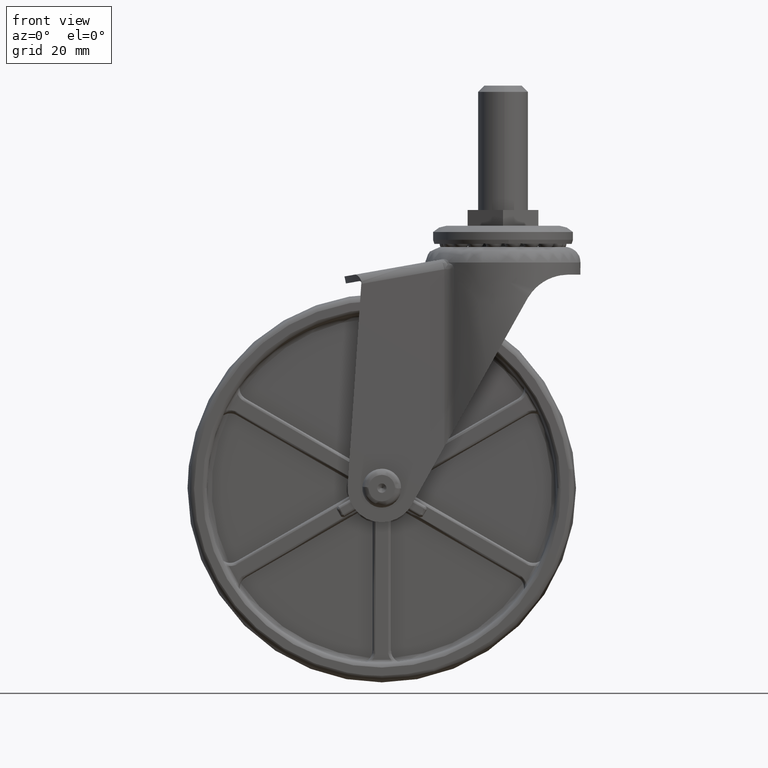
[diagram: clean part render]
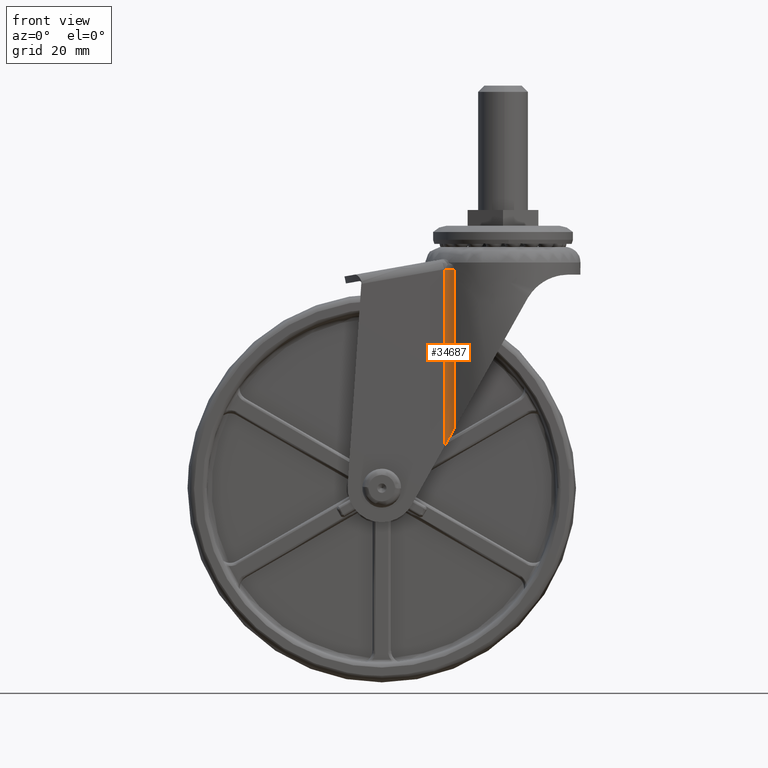
[diagram: same view with one face highlighted and labeled with its STEP entity id]
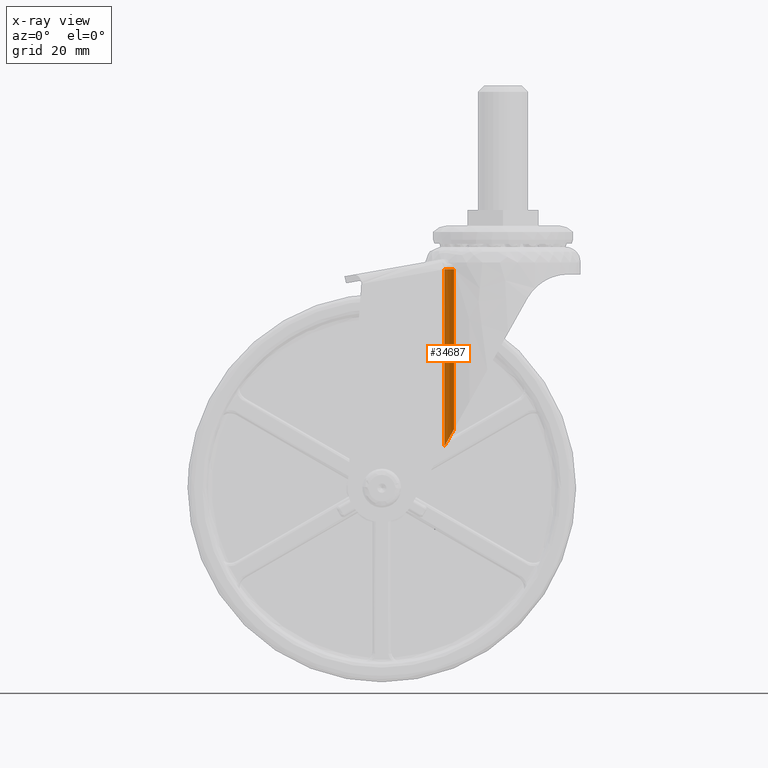
[diagram: x-ray of the same camera — body ghosted, the highlighted face saturated]
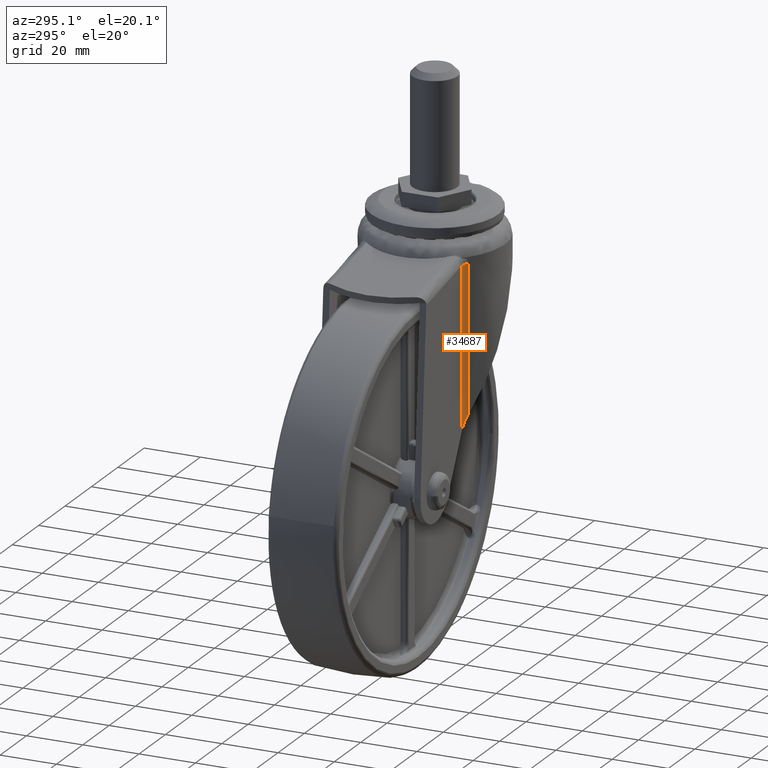
[diagram: same view with one face highlighted and labeled with its STEP entity id]
A machine part, front view. The second image highlights one B-rep face of the part: STEP entity #34687.
The next image is the same camera in x-ray: the body ghosted, the highlighted face saturated — about 0% of this face is hidden behind the body in this view.
A second angle (auxiliary view) of the same face is appended — the face is thin or edge-on in the first view.
In plain terms, the highlighted face is a freeform B-spline surface patch.
Its self-contained STEP definition (entity closure, byte-faithful):
#34582=CARTESIAN_POINT('',(20.102645687821799,-18.300000000000001,70.409651613913397));
#34583=VERTEX_POINT('',#34582);
#34584=CARTESIAN_POINT('',(23.252204739851500,-19.416666666666750,70.409651613913610));
#34585=VERTEX_POINT('',#34584);
#34586=CARTESIAN_POINT('',(20.102645687821799,-18.300000000000001,70.409651613913397));
#34587=CARTESIAN_POINT('',(21.875380613917308,-18.300000000000093,70.409651613913553));
#34588=CARTESIAN_POINT('',(23.252204739851500,-19.416666666666750,70.409651613913610));
#34596=(BOUNDED_CURVE()B_SPLINE_CURVE(2,(#34586,#34587,#34588),.UNSPECIFIED.,.F.,.U.)CURVE()GEOMETRIC_REPRESENTATION_ITEM()QUASI_UNIFORM_CURVE()RATIONAL_B_SPLINE_CURVE((1.0,0.942514367706580,1.0))REPRESENTATION_ITEM(''));
#34597=EDGE_CURVE('',#34583,#34585,#34596,.T.);
#34640=CARTESIAN_POINT('',(23.252204739851500,-19.416666666666750,70.409651613913610));
#34641=CARTESIAN_POINT('',(21.875380613917308,-18.300000000000093,70.409651613913553));
#34642=CARTESIAN_POINT('',(20.102645687821799,-18.300000000000001,70.409651613913610));
#34643=CARTESIAN_POINT('',(23.252204739851500,-19.416666666666750,51.269569277247193));
#34644=CARTESIAN_POINT('',(21.875380613917308,-18.300000000000093,51.269569277247193));
#34645=CARTESIAN_POINT('',(20.102645687821799,-18.300000000000001,51.269569277247193));
#34646=CARTESIAN_POINT('',(23.252204739851500,-19.416666666666750,32.129486940580733));
#34647=CARTESIAN_POINT('',(21.875380613917308,-18.300000000000093,32.129486940580740));
#34648=CARTESIAN_POINT('',(20.102645687821799,-18.300000000000001,32.129486940580733));
#34649=CARTESIAN_POINT('',(23.252204739851500,-19.416666666666750,12.989404603914361));
#34650=CARTESIAN_POINT('',(21.875380613917308,-18.300000000000093,12.989404603914357));
#34651=CARTESIAN_POINT('',(20.102645687821799,-18.300000000000001,12.989404603914361));
#34659=(BOUNDED_SURFACE()B_SPLINE_SURFACE(2,3,((#34640,#34643,#34646,#34649),(#34641,#34644,#34647,#34650),(#34642,#34645,#34648,#34651)),.UNSPECIFIED.,.F.,.F.,.U.)B_SPLINE_SURFACE_WITH_KNOTS((3,3),(4,4),(0.0,3.440547294284274),(0.0,57.420247009999287),.UNSPECIFIED.)GEOMETRIC_REPRESENTATION_ITEM()RATIONAL_B_SPLINE_SURFACE(((1.0,1.0,1.0,1.0),(0.942514367706580,0.942514367706580,0.942514367706580,0.942514367706580),(1.0,1.0,1.0,1.0)))REPRESENTATION_ITEM('')SURFACE());
#34660=CARTESIAN_POINT('',(23.252204739851500,-19.416666666666750,18.940361106884549));
#34661=VERTEX_POINT('',#34660);
#34662=CARTESIAN_POINT('',(20.102645687821848,-18.300000000000001,13.331871285881981));
#34663=VERTEX_POINT('',#34662);
#34664=CARTESIAN_POINT('',(23.252204739851500,-19.416666666666750,18.940361106884549));
#34665=CARTESIAN_POINT('',(22.554079677995190,-18.850455651727490,17.697194289394659));
#34666=CARTESIAN_POINT('',(21.702459903529920,-18.562849540577410,16.180696024859810));
#34667=CARTESIAN_POINT('',(20.924145890768891,-18.300000000000431,14.794734959833610));
#34668=CARTESIAN_POINT('',(20.102645687821848,-18.300000000000001,13.331871285881981));
#34669=B_SPLINE_CURVE_WITH_KNOTS('',2,(#34664,#34665,#34666,#34667,#34668),.UNSPECIFIED.,.F.,.U.,(3,2,3),(0.0,0.500000000000000,1.0),.UNSPECIFIED.);
#34670=EDGE_CURVE('',#34661,#34663,#34669,.T.);
#34671=ORIENTED_EDGE('',*,*,#34670,.F.);
#34672=CARTESIAN_POINT('',(23.252204739851500,-19.416666666666750,70.409651613913610));
#34673=CARTESIAN_POINT('',(23.252204739851649,-19.416666666666789,53.253221444904227));
#34674=CARTESIAN_POINT('',(23.252204739851649,-19.416666666666789,36.096791275894560));
#34675=CARTESIAN_POINT('',(23.252204739851500,-19.416666666666750,18.940361106884549));
#34676=QUASI_UNIFORM_CURVE('',3,(#34672,#34673,#34674,#34675),.UNSPECIFIED.,.F.,.U.);
#34677=EDGE_CURVE('',#34585,#34661,#34676,.T.);
#34678=ORIENTED_EDGE('',*,*,#34677,.F.);
#34679=ORIENTED_EDGE('',*,*,#34597,.F.);
#34680=CARTESIAN_POINT('',(20.102645687821799,-18.300000000000001,13.331871285881981));
#34681=CARTESIAN_POINT('',(20.102645687821799,-18.300000000000001,70.409651613913397));
#34682=QUASI_UNIFORM_CURVE('',1,(#34680,#34681),.UNSPECIFIED.,.F.,.U.);
#34683=EDGE_CURVE('',#34663,#34583,#34682,.T.);
#34684=ORIENTED_EDGE('',*,*,#34683,.F.);
#34685=EDGE_LOOP('',(#34671,#34678,#34679,#34684));
#34686=FACE_OUTER_BOUND('',#34685,.T.);
#34687=ADVANCED_FACE('',(#34686),#34659,.T.);